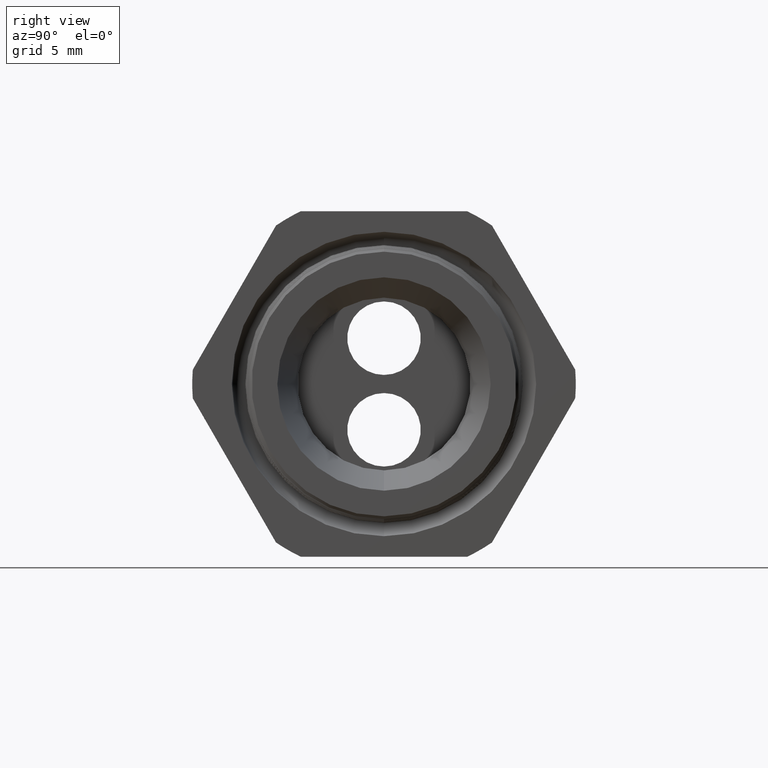
[diagram: clean part render]
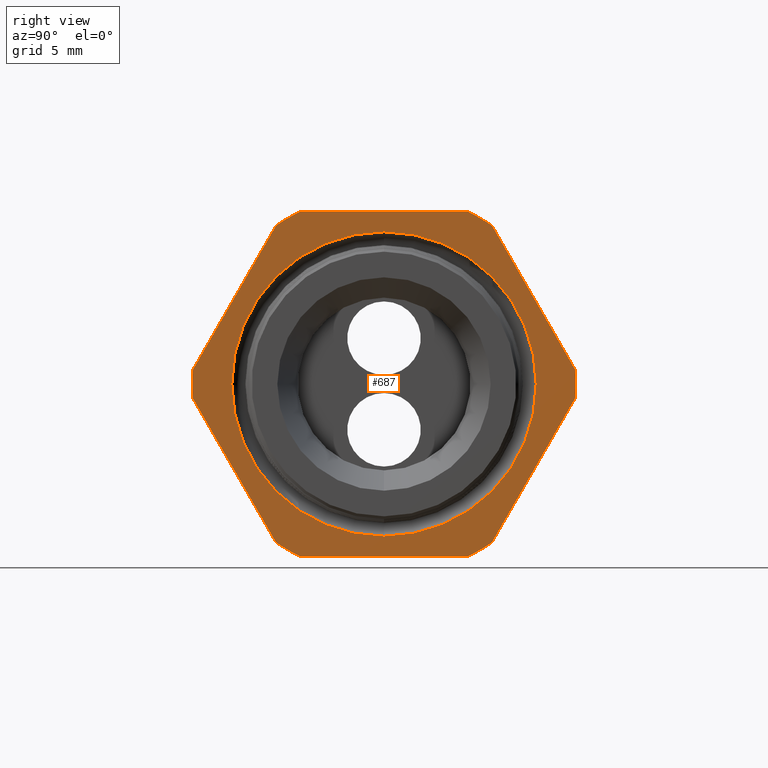
[diagram: same view with one face highlighted and labeled with its STEP entity id]
A machine part, right view. The second image highlights one B-rep face of the part: STEP entity #687.
In plain terms, the highlighted planar face has unit normal (1, 0, 0).
Its self-contained STEP definition (entity closure, byte-faithful):
#257 = VERTEX_POINT ( 'NONE', #1967 ) ;
#613 = VERTEX_POINT ( 'NONE', #2745 ) ;
#614 = ORIENTED_EDGE ( 'NONE', *, *, #615, .T. ) ;
#615 = EDGE_CURVE ( 'NONE', #613, #616, #2744, .T. ) ;
#616 = VERTEX_POINT ( 'NONE', #2739 ) ;
#618 = ORIENTED_EDGE ( 'NONE', *, *, #619, .T. ) ;
#619 = EDGE_CURVE ( 'NONE', #616, #663, #2738, .T. ) ;
#658 = EDGE_CURVE ( 'NONE', #735, #696, #2838, .T. ) ;
#663 = VERTEX_POINT ( 'NONE', #2827 ) ;
#664 = ORIENTED_EDGE ( 'NONE', *, *, #666, .T. ) ;
#666 = EDGE_CURVE ( 'NONE', #663, #668, #2826, .T. ) ;
#668 = VERTEX_POINT ( 'NONE', #2880 ) ;
#670 = ORIENTED_EDGE ( 'NONE', *, *, #672, .T. ) ;
#672 = EDGE_CURVE ( 'NONE', #668, #673, #2877, .T. ) ;
#673 = VERTEX_POINT ( 'NONE', #2873 ) ;
#676 = ORIENTED_EDGE ( 'NONE', *, *, #677, .T. ) ;
#677 = EDGE_CURVE ( 'NONE', #673, #678, #2866, .T. ) ;
#678 = VERTEX_POINT ( 'NONE', #2857 ) ;
#680 = ORIENTED_EDGE ( 'NONE', *, *, #682, .T. ) ;
#682 = EDGE_CURVE ( 'NONE', #678, #683, #2915, .T. ) ;
#683 = VERTEX_POINT ( 'NONE', #2911 ) ;
#685 = ORIENTED_EDGE ( 'NONE', *, *, #686, .T. ) ;
#686 = EDGE_CURVE ( 'NONE', #683, #716, #2910, .T. ) ;
#687 = ADVANCED_FACE ( 'NONE', ( #2905, #2904 ), #2903, .T. ) ;
#688 = EDGE_LOOP ( 'NONE', ( #689, #691 ) ) ;
#689 = ORIENTED_EDGE ( 'NONE', *, *, #690, .F. ) ;
#690 = EDGE_CURVE ( 'NONE', #4667, #257, #2898, .T. ) ;
#691 = ORIENTED_EDGE ( 'NONE', *, *, #4662, .F. ) ;
#692 = EDGE_LOOP ( 'NONE', ( #694, #614, #618, #664, #670, #676, #680, #685, #720, #726, #732, #736 ) ) ;
#694 = ORIENTED_EDGE ( 'NONE', *, *, #695, .T. ) ;
#695 = EDGE_CURVE ( 'NONE', #696, #613, #2893, .T. ) ;
#696 = VERTEX_POINT ( 'NONE', #2889 ) ;
#716 = VERTEX_POINT ( 'NONE', #2981 ) ;
#720 = ORIENTED_EDGE ( 'NONE', *, *, #722, .T. ) ;
#722 = EDGE_CURVE ( 'NONE', #716, #723, #2970, .T. ) ;
#723 = VERTEX_POINT ( 'NONE', #2966 ) ;
#726 = ORIENTED_EDGE ( 'NONE', *, *, #727, .T. ) ;
#727 = EDGE_CURVE ( 'NONE', #723, #729, #2963, .T. ) ;
#729 = VERTEX_POINT ( 'NONE', #3012 ) ;
#732 = ORIENTED_EDGE ( 'NONE', *, *, #733, .T. ) ;
#733 = EDGE_CURVE ( 'NONE', #729, #735, #3005, .T. ) ;
#735 = VERTEX_POINT ( 'NONE', #3001 ) ;
#736 = ORIENTED_EDGE ( 'NONE', *, *, #658, .T. ) ;
#1967 = CARTESIAN_POINT ( 'NONE',  ( -0.3100000000000000000, 5.070638467826607500E-017, 0.4140490524579807900 ) ) ;
#2735 = DIRECTION ( 'NONE',  ( 0.0000000000000000000, -0.5000000000000001100, 0.8660254037844384900 ) ) ;
#2736 = VECTOR ( 'NONE', #2735, 39.37007874015748900 ) ;
#2737 = CARTESIAN_POINT ( 'NONE',  ( -0.3100000000000000000, 0.6420319397786862200, -0.1720319397786861700 ) ) ;
#2738 = LINE ( 'NONE', #2737, #2736 ) ;
#2739 = CARTESIAN_POINT ( 'NONE',  ( -0.3100000000000000000, 0.5202473208008776600, 0.03890520787129531800 ) ) ;
#2740 = DIRECTION ( 'NONE',  ( 0.0000000000000000000, 0.0000000000000000000, -1.000000000000000000 ) ) ;
#2741 = DIRECTION ( 'NONE',  ( 1.000000000000000000, 0.0000000000000000000, 0.0000000000000000000 ) ) ;
#2742 = CARTESIAN_POINT ( 'NONE',  ( -0.3100000000000000000, 0.0000000000000000000, 0.0000000000000000000 ) ) ;
#2743 = AXIS2_PLACEMENT_3D ( 'NONE', #2742, #2741, #2740 ) ;
#2744 = CIRCLE ( 'NONE', #2743, 0.5217000000000000500 ) ;
#2745 = CARTESIAN_POINT ( 'NONE',  ( -0.3100000000000000000, 0.5202473208008777700, -0.03890520787129494300 ) ) ;
#2824 = CARTESIAN_POINT ( 'NONE',  ( -0.3100000000000000000, 0.0000000000000000000, 0.0000000000000000000 ) ) ;
#2825 = AXIS2_PLACEMENT_3D ( 'NONE', #2824, #2887, #2886 ) ;
#2826 = CIRCLE ( 'NONE', #2825, 0.5217000000000000500 ) ;
#2827 = CARTESIAN_POINT ( 'NONE',  ( -0.3100000000000000000, 0.2938165587564947600, 0.4310947921287048800 ) ) ;
#2834 = DIRECTION ( 'NONE',  ( 0.0000000000000000000, 0.0000000000000000000, -1.000000000000000000 ) ) ;
#2835 = DIRECTION ( 'NONE',  ( 1.000000000000000000, 0.0000000000000000000, 0.0000000000000000000 ) ) ;
#2836 = CARTESIAN_POINT ( 'NONE',  ( -0.3100000000000000000, 0.0000000000000000000, 0.0000000000000000000 ) ) ;
#2837 = AXIS2_PLACEMENT_3D ( 'NONE', #2836, #2835, #2834 ) ;
#2838 = CIRCLE ( 'NONE', #2837, 0.5217000000000000500 ) ;
#2857 = CARTESIAN_POINT ( 'NONE',  ( -0.3100000000000000000, -0.2938165587564945900, 0.4310947921287050500 ) ) ;
#2858 = DIRECTION ( 'NONE',  ( 0.0000000000000000000, 0.0000000000000000000, -1.000000000000000000 ) ) ;
#2859 = DIRECTION ( 'NONE',  ( 1.000000000000000000, 0.0000000000000000000, 0.0000000000000000000 ) ) ;
#2860 = CARTESIAN_POINT ( 'NONE',  ( -0.3100000000000000000, 0.0000000000000000000, 0.0000000000000000000 ) ) ;
#2861 = AXIS2_PLACEMENT_3D ( 'NONE', #2860, #2859, #2858 ) ;
#2866 = CIRCLE ( 'NONE', #2861, 0.5217000000000000500 ) ;
#2873 = CARTESIAN_POINT ( 'NONE',  ( -0.3100000000000000000, -0.2264307620443835300, 0.4699999999999997000 ) ) ;
#2874 = DIRECTION ( 'NONE',  ( 0.0000000000000000000, -1.000000000000000000, 0.0000000000000000000 ) ) ;
#2875 = VECTOR ( 'NONE', #2874, 39.37007874015748100 ) ;
#2876 = CARTESIAN_POINT ( 'NONE',  ( -0.3100000000000000000, 0.9399999999999999500, 0.4699999999999999200 ) ) ;
#2877 = LINE ( 'NONE', #2876, #2875 ) ;
#2880 = CARTESIAN_POINT ( 'NONE',  ( -0.3100000000000000000, 0.2264307620443832800, 0.4699999999999999200 ) ) ;
#2886 = DIRECTION ( 'NONE',  ( 0.0000000000000000000, 0.0000000000000000000, -1.000000000000000000 ) ) ;
#2887 = DIRECTION ( 'NONE',  ( 1.000000000000000000, 0.0000000000000000000, 0.0000000000000000000 ) ) ;
#2889 = CARTESIAN_POINT ( 'NONE',  ( -0.3100000000000000000, 0.2938165587564948700, -0.4310947921287048800 ) ) ;
#2890 = DIRECTION ( 'NONE',  ( 0.0000000000000000000, 0.4999999999999998300, 0.8660254037844388200 ) ) ;
#2891 = VECTOR ( 'NONE', #2890, 39.37007874015748100 ) ;
#2892 = CARTESIAN_POINT ( 'NONE',  ( -0.3100000000000000000, 0.6420319397786861100, 0.1720319397786860800 ) ) ;
#2893 = LINE ( 'NONE', #2892, #2891 ) ;
#2894 = DIRECTION ( 'NONE',  ( 0.0000000000000000000, 0.0000000000000000000, -1.000000000000000000 ) ) ;
#2895 = DIRECTION ( 'NONE',  ( 1.000000000000000000, 0.0000000000000000000, 0.0000000000000000000 ) ) ;
#2896 = CARTESIAN_POINT ( 'NONE',  ( -0.3100000000000000000, 0.0000000000000000000, 0.0000000000000000000 ) ) ;
#2897 = AXIS2_PLACEMENT_3D ( 'NONE', #2896, #2895, #2894 ) ;
#2898 = CIRCLE ( 'NONE', #2897, 0.4140490524579808500 ) ;
#2899 = DIRECTION ( 'NONE',  ( 0.0000000000000000000, 0.0000000000000000000, -1.000000000000000000 ) ) ;
#2900 = DIRECTION ( 'NONE',  ( 1.000000000000000000, 0.0000000000000000000, 0.0000000000000000000 ) ) ;
#2901 = CARTESIAN_POINT ( 'NONE',  ( -0.3100000000000000000, 0.9399999999999999500, 0.0000000000000000000 ) ) ;
#2902 = AXIS2_PLACEMENT_3D ( 'NONE', #2901, #2900, #2899 ) ;
#2903 = PLANE ( 'NONE',  #2902 ) ;
#2904 = FACE_OUTER_BOUND ( 'NONE', #692, .T. ) ;
#2905 = FACE_BOUND ( 'NONE', #688, .T. ) ;
#2906 = DIRECTION ( 'NONE',  ( 0.0000000000000000000, 0.0000000000000000000, -1.000000000000000000 ) ) ;
#2907 = DIRECTION ( 'NONE',  ( 1.000000000000000000, 0.0000000000000000000, 0.0000000000000000000 ) ) ;
#2908 = CARTESIAN_POINT ( 'NONE',  ( -0.3100000000000000000, 0.0000000000000000000, 0.0000000000000000000 ) ) ;
#2909 = AXIS2_PLACEMENT_3D ( 'NONE', #2908, #2907, #2906 ) ;
#2910 = CIRCLE ( 'NONE', #2909, 0.5217000000000000500 ) ;
#2911 = CARTESIAN_POINT ( 'NONE',  ( -0.3100000000000000000, -0.5202473208008777700, 0.03890520787129464500 ) ) ;
#2912 = DIRECTION ( 'NONE',  ( 0.0000000000000000000, -0.4999999999999998300, -0.8660254037844388200 ) ) ;
#2913 = VECTOR ( 'NONE', #2912, 39.37007874015748100 ) ;
#2914 = CARTESIAN_POINT ( 'NONE',  ( -0.3100000000000000000, -0.1720319397786864200, 0.6420319397786858900 ) ) ;
#2915 = LINE ( 'NONE', #2914, #2913 ) ;
#2955 = DIRECTION ( 'NONE',  ( 0.0000000000000000000, 0.0000000000000000000, -1.000000000000000000 ) ) ;
#2956 = DIRECTION ( 'NONE',  ( 1.000000000000000000, 0.0000000000000000000, 0.0000000000000000000 ) ) ;
#2957 = CARTESIAN_POINT ( 'NONE',  ( -0.3100000000000000000, 0.0000000000000000000, 0.0000000000000000000 ) ) ;
#2958 = AXIS2_PLACEMENT_3D ( 'NONE', #2957, #2956, #2955 ) ;
#2963 = CIRCLE ( 'NONE', #2958, 0.5217000000000000500 ) ;
#2966 = CARTESIAN_POINT ( 'NONE',  ( -0.3100000000000000000, -0.2938165587564942600, -0.4310947921287053300 ) ) ;
#2967 = DIRECTION ( 'NONE',  ( 0.0000000000000000000, 0.5000000000000001100, -0.8660254037844384900 ) ) ;
#2968 = VECTOR ( 'NONE', #2967, 39.37007874015748900 ) ;
#2969 = CARTESIAN_POINT ( 'NONE',  ( -0.3100000000000000000, -0.1720319397786861700, -0.6420319397786864400 ) ) ;
#2970 = LINE ( 'NONE', #2969, #2968 ) ;
#2981 = CARTESIAN_POINT ( 'NONE',  ( -0.3100000000000000000, -0.5202473208008777700, -0.03890520787129495000 ) ) ;
#3001 = CARTESIAN_POINT ( 'NONE',  ( -0.3100000000000000000, 0.2264307620443831200, -0.4700000000000000300 ) ) ;
#3002 = DIRECTION ( 'NONE',  ( 0.0000000000000000000, 1.000000000000000000, 0.0000000000000000000 ) ) ;
#3003 = VECTOR ( 'NONE', #3002, 39.37007874015748100 ) ;
#3004 = CARTESIAN_POINT ( 'NONE',  ( -0.3100000000000000000, 0.9399999999999999500, -0.4700000000000000300 ) ) ;
#3005 = LINE ( 'NONE', #3004, #3003 ) ;
#3012 = CARTESIAN_POINT ( 'NONE',  ( -0.3100000000000000000, -0.2264307620443830900, -0.4700000000000000300 ) ) ;
#4357 = CARTESIAN_POINT ( 'NONE',  ( -0.3100000000000000000, 0.0000000000000000000, -0.4140490524579807900 ) ) ;
#4363 = DIRECTION ( 'NONE',  ( 0.0000000000000000000, 0.0000000000000000000, -1.000000000000000000 ) ) ;
#4364 = DIRECTION ( 'NONE',  ( 1.000000000000000000, 0.0000000000000000000, 0.0000000000000000000 ) ) ;
#4365 = CARTESIAN_POINT ( 'NONE',  ( -0.3100000000000000000, 0.0000000000000000000, 0.0000000000000000000 ) ) ;
#4366 = AXIS2_PLACEMENT_3D ( 'NONE', #4365, #4364, #4363 ) ;
#4367 = CIRCLE ( 'NONE', #4366, 0.4140490524579808500 ) ;
#4662 = EDGE_CURVE ( 'NONE', #257, #4667, #4367, .T. ) ;
#4667 = VERTEX_POINT ( 'NONE', #4357 ) ;